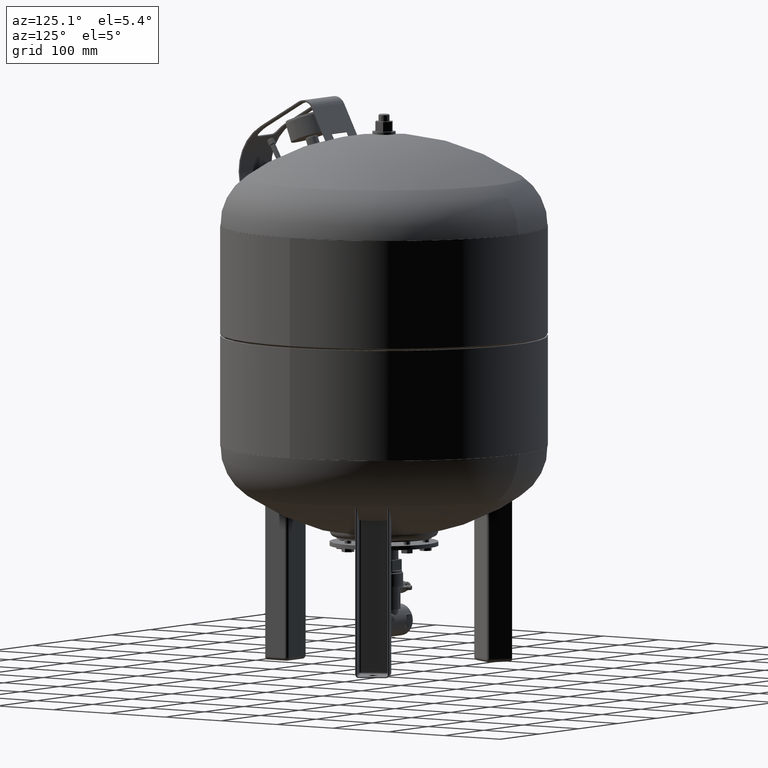
[diagram: clean part render]
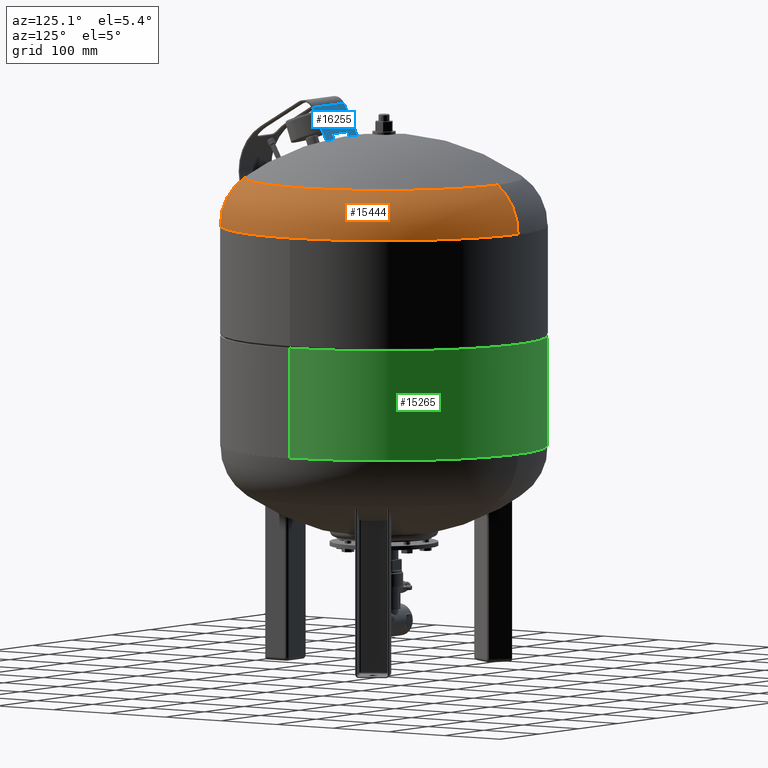
[diagram: same view with three faces highlighted in distinct colors, each labeled with its STEP entity id]
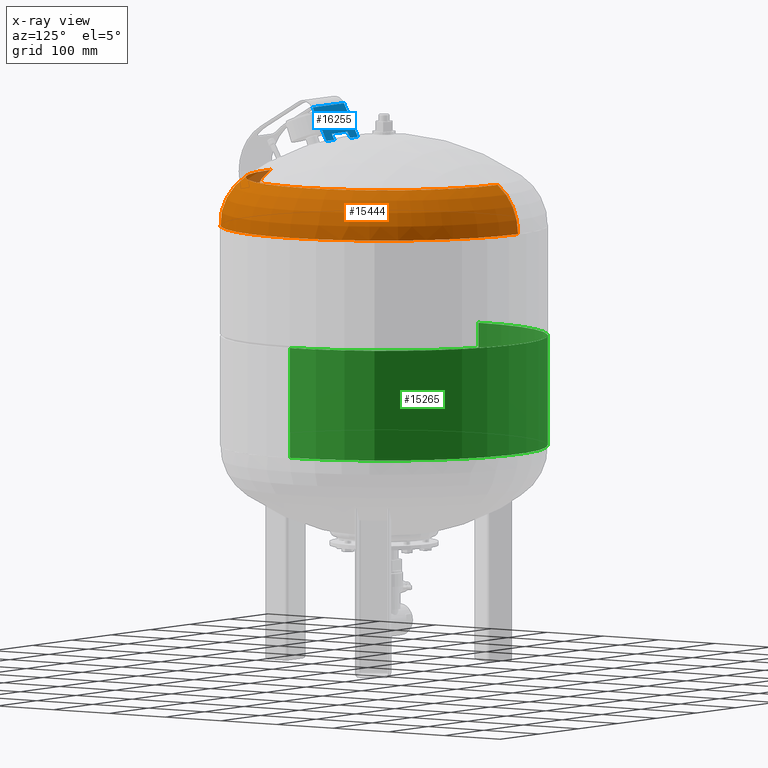
[diagram: x-ray of the same camera — body ghosted, the three highlighted faces saturated]
A machine part, auxiliary view with three faces highlighted in distinct colors.
The next image is the same camera in x-ray (body ghosted, the three faces saturated) — at least one of them is partly hidden behind the body in this view.
Their STEP definitions:

[orange] entity #15444 — the highlighted toroidal blend (fillet) surface has major radius 154 mm and minor (blend) radius 86 mm.
#15330=CARTESIAN_POINT('',(240.0,-1.299437E-014,647.446016103952270));
#15331=VERTEX_POINT('',#15330);
#15338=CARTESIAN_POINT('',(-3.818310E-014,-239.999999999999970,647.446016103952160));
#15339=VERTEX_POINT('',#15338);
#15340=CARTESIAN_POINT('',(2.963866E-017,1.639618E-014,647.446016103952270));
#15341=DIRECTION('',(0.0,0.0,-1.0));
#15342=DIRECTION('',(-1.0,0.0,0.0));
#15343=AXIS2_PLACEMENT_3D('',#15340,#15341,#15342);
#15344=CIRCLE('',#15343,240.0);
#15345=EDGE_CURVE('',#15331,#15339,#15344,.T.);
#15362=CARTESIAN_POINT('',(-8.792549E-015,240.000000000000030,647.446016103952390));
#15363=VERTEX_POINT('',#15362);
#15364=CARTESIAN_POINT('',(-4.111121E-015,203.325884543761560,717.894274520860560));
#15365=VERTEX_POINT('',#15364);
#15366=CARTESIAN_POINT('',(-8.792549E-015,154.0,647.446016103952270));
#15367=DIRECTION('',(1.0,0.0,0.0));
#15368=DIRECTION('',(0.0,1.0,0.0));
#15369=AXIS2_PLACEMENT_3D('',#15366,#15367,#15368);
#15370=CIRCLE('',#15369,86.0);
#15371=EDGE_CURVE('',#15363,#15365,#15370,.T.);
#15381=CARTESIAN_POINT('',(-2.901054E-014,-203.325884543761560,717.894274520860340));
#15382=VERTEX_POINT('',#15381);
#15383=CARTESIAN_POINT('',(-2.765149E-014,-153.999999999999940,647.446016103952050));
#15384=DIRECTION('',(-1.0,0.0,0.0));
#15385=DIRECTION('',(0.0,-1.0,0.0));
#15386=AXIS2_PLACEMENT_3D('',#15383,#15384,#15385);
#15387=CIRCLE('',#15386,86.0);
#15388=EDGE_CURVE('',#15339,#15382,#15387,.T.);
#15416=CARTESIAN_POINT('',(4.711066E-015,-5.172380E-015,717.894274520860450));
#15417=DIRECTION('',(0.0,0.0,-1.0));
#15418=DIRECTION('',(-1.0,0.0,0.0));
#15419=AXIS2_PLACEMENT_3D('',#15416,#15417,#15418);
#15420=CIRCLE('',#15419,203.325884543761560);
#15421=EDGE_CURVE('',#15365,#15382,#15420,.T.);
#15426=CARTESIAN_POINT('',(-8.792549E-015,1.639618E-014,647.446016103952160));
#15427=DIRECTION('',(-6.645200E-017,3.061617E-016,-1.0));
#15428=DIRECTION('',(0.0,1.0,0.0));
#15429=AXIS2_PLACEMENT_3D('',#15426,#15427,#15428);
#15430=TOROIDAL_SURFACE('',#15429,153.999999999999970,86.0);
#15431=ORIENTED_EDGE('',*,*,#15371,.T.);
#15432=ORIENTED_EDGE('',*,*,#15421,.T.);
#15433=ORIENTED_EDGE('',*,*,#15388,.F.);
#15434=ORIENTED_EDGE('',*,*,#15345,.F.);
#15435=CARTESIAN_POINT('',(2.963866E-017,1.639618E-014,647.446016103952270));
#15436=DIRECTION('',(0.0,0.0,-1.0));
#15437=DIRECTION('',(-1.0,0.0,0.0));
#15438=AXIS2_PLACEMENT_3D('',#15435,#15436,#15437);
#15439=CIRCLE('',#15438,240.0);
#15440=EDGE_CURVE('',#15363,#15331,#15439,.T.);
#15441=ORIENTED_EDGE('',*,*,#15440,.F.);
#15442=EDGE_LOOP('',(#15431,#15432,#15433,#15434,#15441));
#15443=FACE_OUTER_BOUND('',#15442,.T.);
#15444=ADVANCED_FACE('',(#15443),#15430,.T.);

[blue] entity #16255 — the highlighted planar face has unit normal (-0, 0.8886, 0.4586).
#16184=CARTESIAN_POINT('',(-9.684235E-014,-136.268339786521890,889.494968939848720));
#16185=DIRECTION('',(-7.000918E-016,0.888617232654948,0.458649554484317));
#16186=DIRECTION('',(-8.301400E-017,-0.458649554484317,0.888617232654948));
#16187=AXIS2_PLACEMENT_3D('',#16184,#16185,#16186);
#16188=PLANE('',#16187);
#16189=CARTESIAN_POINT('',(-40.000000000000007,-99.622755570735777,818.495450208234620));
#16190=VERTEX_POINT('',#16189);
#16191=CARTESIAN_POINT('',(39.999999999999993,-99.622755570735734,818.495450208234620));
#16192=VERTEX_POINT('',#16191);
#16193=CARTESIAN_POINT('',(-40.000000000000007,-99.622755570735777,818.495450208234620));
#16194=DIRECTION('',(1.0,0.0,0.0));
#16195=VECTOR('',#16194,80.0);
#16196=LINE('',#16193,#16195);
#16197=EDGE_CURVE('',#16190,#16192,#16196,.T.);
#16198=ORIENTED_EDGE('',*,*,#16197,.T.);
#16199=CARTESIAN_POINT('',(40.000000000000050,-74.809299485623399,770.420259764085700));
#16200=VERTEX_POINT('',#16199);
#16201=CARTESIAN_POINT('',(39.999999999999993,-99.622755570735734,818.495450208234620));
#16202=DIRECTION('',(1.050688E-015,0.458649554484317,-0.888617232654948));
#16203=VECTOR('',#16202,54.101123270492138);
#16204=LINE('',#16201,#16203);
#16205=EDGE_CURVE('',#16192,#16200,#16204,.T.);
#16206=ORIENTED_EDGE('',*,*,#16205,.T.);
#16207=CARTESIAN_POINT('',(20.000000000000039,-74.809299485623399,770.420259764085590));
#16208=VERTEX_POINT('',#16207);
#16209=CARTESIAN_POINT('',(40.000000000000050,-74.809299485623399,770.420259764085700));
#16210=DIRECTION('',(-1.0,0.0,0.0));
#16211=VECTOR('',#16210,20.000000000000011);
#16212=LINE('',#16209,#16211);
#16213=EDGE_CURVE('',#16200,#16208,#16212,.T.);
#16214=ORIENTED_EDGE('',*,*,#16213,.T.);
#16215=CARTESIAN_POINT('',(20.000000000000036,-79.395795030466573,779.306432090635100));
#16216=VERTEX_POINT('',#16215);
#16217=CARTESIAN_POINT('',(20.000000000000039,-74.809299485623399,770.420259764085590));
#16218=DIRECTION('',(-3.552714E-016,-0.458649554484316,0.888617232654948));
#16219=VECTOR('',#16218,10.000000000000034);
#16220=LINE('',#16217,#16219);
#16221=EDGE_CURVE('',#16208,#16216,#16220,.T.);
#16222=ORIENTED_EDGE('',*,*,#16221,.T.);
#16223=CARTESIAN_POINT('',(-19.999999999999975,-79.395795030466573,779.306432090635100));
#16224=VERTEX_POINT('',#16223);
#16225=CARTESIAN_POINT('',(20.000000000000036,-79.395795030466573,779.306432090635100));
#16226=DIRECTION('',(-1.0,0.0,0.0));
#16227=VECTOR('',#16226,40.000000000000014);
#16228=LINE('',#16225,#16227);
#16229=EDGE_CURVE('',#16216,#16224,#16228,.T.);
#16230=ORIENTED_EDGE('',*,*,#16229,.T.);
#16231=CARTESIAN_POINT('',(-19.999999999999964,-74.809299485623413,770.420259764085590));
#16232=VERTEX_POINT('',#16231);
#16233=CARTESIAN_POINT('',(-19.999999999999975,-79.395795030466573,779.306432090635100));
#16234=DIRECTION('',(1.065814E-015,0.458649554484315,-0.888617232654949));
#16235=VECTOR('',#16234,10.000000000000027);
#16236=LINE('',#16233,#16235);
#16237=EDGE_CURVE('',#16224,#16232,#16236,.T.);
#16238=ORIENTED_EDGE('',*,*,#16237,.T.);
#16239=CARTESIAN_POINT('',(-39.999999999999950,-74.809299485623399,770.420259764085590));
#16240=VERTEX_POINT('',#16239);
#16241=CARTESIAN_POINT('',(-19.999999999999964,-74.809299485623413,770.420259764085590));
#16242=DIRECTION('',(-1.0,0.0,0.0));
#16243=VECTOR('',#16242,19.999999999999986);
#16244=LINE('',#16241,#16243);
#16245=EDGE_CURVE('',#16232,#16240,#16244,.T.);
#16246=ORIENTED_EDGE('',*,*,#16245,.T.);
#16247=CARTESIAN_POINT('',(-39.999999999999950,-74.809299485623399,770.420259764085590));
#16248=DIRECTION('',(-1.050688E-015,-0.458649554484317,0.888617232654948));
#16249=VECTOR('',#16248,54.101123270492259);
#16250=LINE('',#16247,#16249);
#16251=EDGE_CURVE('',#16240,#16190,#16250,.T.);
#16252=ORIENTED_EDGE('',*,*,#16251,.T.);
#16253=EDGE_LOOP('',(#16198,#16206,#16214,#16222,#16230,#16238,#16246,#16252));
#16254=FACE_OUTER_BOUND('',#16253,.T.);
#16255=ADVANCED_FACE('',(#16254),#16188,.T.);

[green] entity #15265 — the highlighted cylindrical surface (partial cylindrical patch) has radius 240 mm, axis along (0, 0, 1).
#15135=CARTESIAN_POINT('',(239.999999999999970,-1.305246E-029,485.500000000000060));
#15136=VERTEX_POINT('',#15135);
#15137=CARTESIAN_POINT('',(240.0,2.204364E-014,324.0));
#15138=VERTEX_POINT('',#15137);
#15139=CARTESIAN_POINT('',(239.999999999999970,-1.305246E-029,485.500000000000060));
#15140=DIRECTION('',(0.0,0.0,-1.0));
#15141=VECTOR('',#15140,161.500000000000060);
#15142=LINE('',#15139,#15141);
#15143=EDGE_CURVE('',#15136,#15138,#15142,.T.);
#15145=CARTESIAN_POINT('',(-239.999999999999940,-7.346910E-015,485.500000000000060));
#15146=VERTEX_POINT('',#15145);
#15154=CARTESIAN_POINT('',(-239.999999999999940,-7.346910E-015,324.0));
#15155=VERTEX_POINT('',#15154);
#15156=CARTESIAN_POINT('',(-239.999999999999940,-7.346910E-015,485.500000000000060));
#15157=DIRECTION('',(0.0,0.0,-1.0));
#15158=VECTOR('',#15157,161.500000000000060);
#15159=LINE('',#15156,#15158);
#15160=EDGE_CURVE('',#15146,#15155,#15159,.T.);
#15234=CARTESIAN_POINT('',(-3.944305E-030,-6.526229E-030,485.500000000000060));
#15235=DIRECTION('',(0.0,0.0,-1.0));
#15236=DIRECTION('',(1.0,0.0,0.0));
#15237=AXIS2_PLACEMENT_3D('',#15234,#15235,#15236);
#15238=CIRCLE('',#15237,239.999999999999970);
#15239=EDGE_CURVE('',#15146,#15136,#15238,.T.);
#15248=CARTESIAN_POINT('',(1.469576E-014,2.204364E-014,324.0));
#15249=DIRECTION('',(0.0,0.0,1.0));
#15250=DIRECTION('',(1.0,0.0,0.0));
#15251=AXIS2_PLACEMENT_3D('',#15248,#15249,#15250);
#15252=CYLINDRICAL_SURFACE('',#15251,239.999999999999970);
#15253=ORIENTED_EDGE('',*,*,#15143,.T.);
#15254=CARTESIAN_POINT('',(1.469576E-014,2.204364E-014,324.0));
#15255=DIRECTION('',(0.0,0.0,1.0));
#15256=DIRECTION('',(1.0,0.0,0.0));
#15257=AXIS2_PLACEMENT_3D('',#15254,#15255,#15256);
#15258=CIRCLE('',#15257,239.999999999999970);
#15259=EDGE_CURVE('',#15138,#15155,#15258,.T.);
#15260=ORIENTED_EDGE('',*,*,#15259,.T.);
#15261=ORIENTED_EDGE('',*,*,#15160,.F.);
#15262=ORIENTED_EDGE('',*,*,#15239,.T.);
#15263=EDGE_LOOP('',(#15253,#15260,#15261,#15262));
#15264=FACE_OUTER_BOUND('',#15263,.T.);
#15265=ADVANCED_FACE('',(#15264),#15252,.T.);